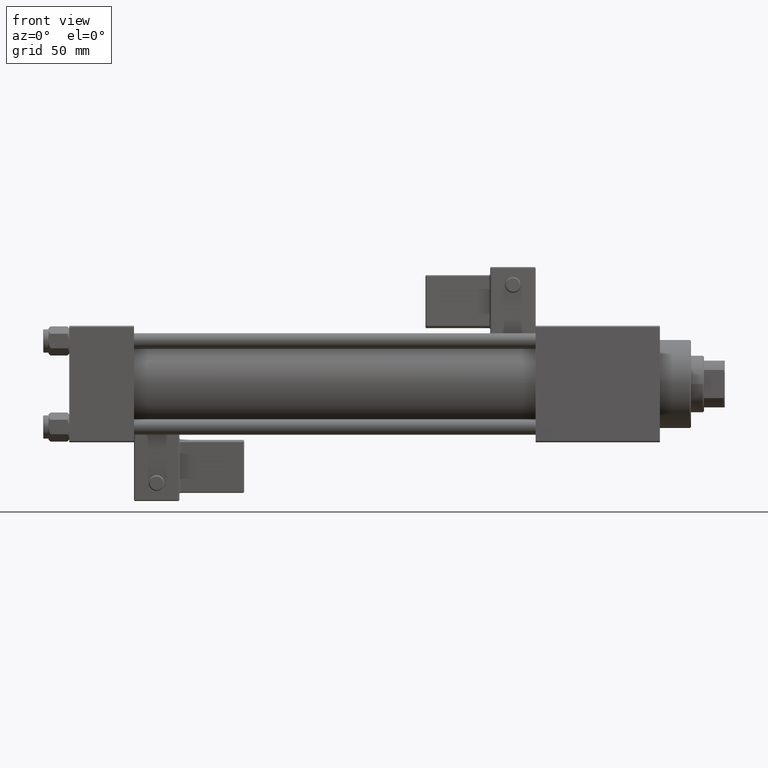
[diagram: clean part render]
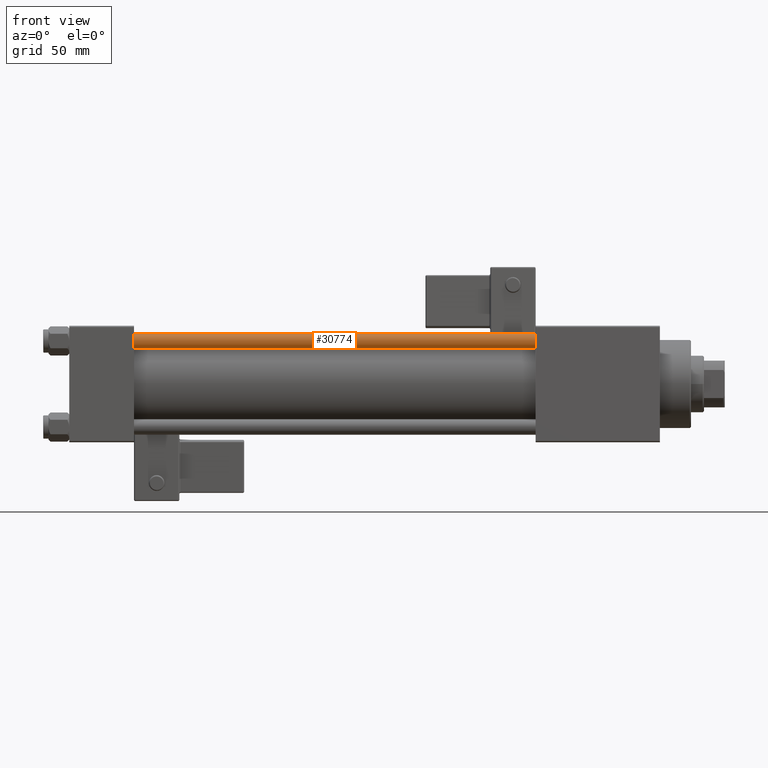
[diagram: same view with one face highlighted and labeled with its STEP entity id]
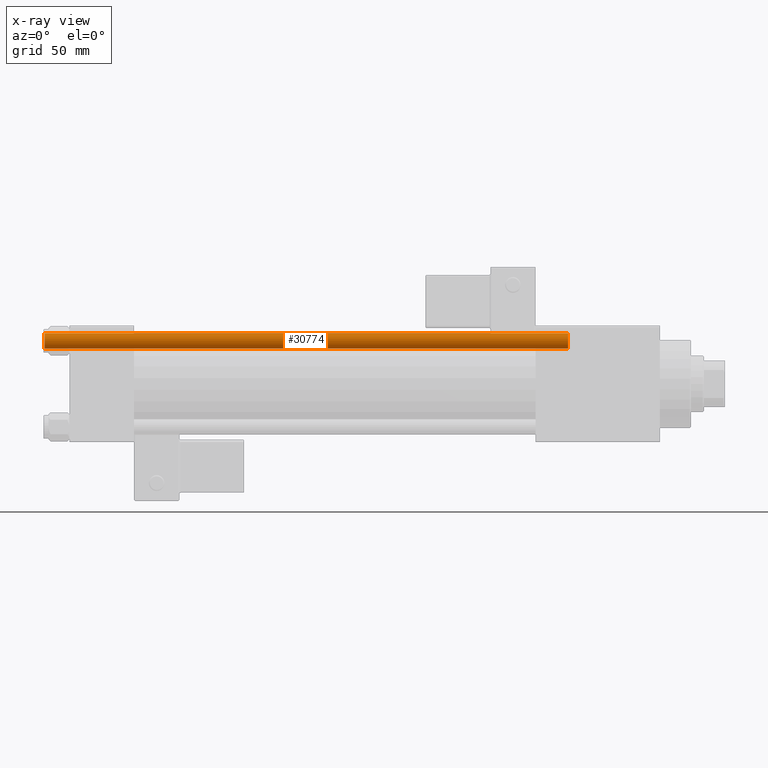
[diagram: x-ray of the same camera — body ghosted, the highlighted face saturated]
A machine part, front view. The second image highlights one B-rep face of the part: STEP entity #30774.
The next image is the same camera in x-ray: the body ghosted, the highlighted face saturated — about 0% of this face is hidden behind the body in this view.
In plain terms, the highlighted cylindrical surface (edge-blend (fillet) strip) has radius 3 mm, axis along (1, 0, -0).
Its self-contained STEP definition (entity closure, byte-faithful):
#105 = DIRECTION ( 'NONE',  ( 1.000000000000000000, 0.000000000000000000, 0.000000000000000000 ) ) ;
#705 = VECTOR ( 'NONE', #10915, 1000.000000000000000 ) ;
#1256 = DIRECTION ( 'NONE',  ( -0.000000000000000000, -0.000000000000000000, -1.000000000000000000 ) ) ;
#1626 = EDGE_CURVE ( 'NONE', #9570, #14562, #2438, .T. ) ;
#2417 = DIRECTION ( 'NONE',  ( -0.000000000000000000, -0.000000000000000000, -1.000000000000000000 ) ) ;
#2438 = CIRCLE ( 'NONE', #44129, 3.000000000000000444 ) ;
#3922 = CARTESIAN_POINT ( 'NONE',  ( 0.000000000000000000, 0.000000000000000000, 202.5000000000000853 ) ) ;
#7731 = DIRECTION ( 'NONE',  ( -0.000000000000000000, -0.000000000000000000, 1.000000000000000000 ) ) ;
#9570 = VERTEX_POINT ( 'NONE', #51593 ) ;
#10033 = VECTOR ( 'NONE', #1256, 1000.000000000000000 ) ;
#10286 = ORIENTED_EDGE ( 'NONE', *, *, #35065, .T. ) ;
#10915 = DIRECTION ( 'NONE',  ( -0.000000000000000000, -0.000000000000000000, -1.000000000000000000 ) ) ;
#11836 = DIRECTION ( 'NONE',  ( 0.000000000000000000, 0.000000000000000000, -1.000000000000000000 ) ) ;
#14250 = CIRCLE ( 'NONE', #44614, 3.000000000000000444 ) ;
#14562 = VERTEX_POINT ( 'NONE', #46090 ) ;
#15522 = LINE ( 'NONE', #39715, #705 ) ;
#16199 = ORIENTED_EDGE ( 'NONE', *, *, #20361, .T. ) ;
#19303 = CYLINDRICAL_SURFACE ( 'NONE', #32319, 3.000000000000000444 ) ;
#20246 = DIRECTION ( 'NONE',  ( 1.000000000000000000, 0.000000000000000000, 0.000000000000000000 ) ) ;
#20361 = EDGE_CURVE ( 'NONE', #45824, #9570, #15522, .T. ) ;
#24955 = CARTESIAN_POINT ( 'NONE',  ( -3.000000000000000444, 0.000000000000000000, 203.0000000000000000 ) ) ;
#28257 = CARTESIAN_POINT ( 'NONE',  ( 0.000000000000000000, 0.000000000000000000, 203.0000000000000000 ) ) ;
#30012 = ORIENTED_EDGE ( 'NONE', *, *, #1626, .T. ) ;
#30774 = ADVANCED_FACE ( 'NONE', ( #39668 ), #19303, .T. ) ;
#32319 = AXIS2_PLACEMENT_3D ( 'NONE', #28257, #2417, #36650 ) ;
#33000 = CARTESIAN_POINT ( 'NONE',  ( 0.000000000000000000, 0.000000000000000000, 0.5000000000001114664 ) ) ;
#34086 = VERTEX_POINT ( 'NONE', #39623 ) ;
#34372 = EDGE_LOOP ( 'NONE', ( #10286, #16199, #30012, #47105 ) ) ;
#35065 = EDGE_CURVE ( 'NONE', #34086, #45824, #14250, .T. ) ;
#36650 = DIRECTION ( 'NONE',  ( -1.000000000000000000, 0.000000000000000000, 0.000000000000000000 ) ) ;
#38506 = LINE ( 'NONE', #24955, #10033 ) ;
#39623 = CARTESIAN_POINT ( 'NONE',  ( -3.000000000000000444, 0.000000000000000000, 202.5000000000000853 ) ) ;
#39668 = FACE_OUTER_BOUND ( 'NONE', #34372, .T. ) ;
#39715 = CARTESIAN_POINT ( 'NONE',  ( 3.000000000000000444, 3.673940397442059868E-16, 203.0000000000000000 ) ) ;
#43764 = CARTESIAN_POINT ( 'NONE',  ( 3.000000000000000444, 3.673940397442059868E-16, 202.5000000000000853 ) ) ;
#44129 = AXIS2_PLACEMENT_3D ( 'NONE', #33000, #7731, #20246 ) ;
#44614 = AXIS2_PLACEMENT_3D ( 'NONE', #3922, #11836, #105 ) ;
#45326 = EDGE_CURVE ( 'NONE', #34086, #14562, #38506, .T. ) ;
#45824 = VERTEX_POINT ( 'NONE', #43764 ) ;
#46090 = CARTESIAN_POINT ( 'NONE',  ( -3.000000000000000444, 0.000000000000000000, 0.5000000000001114664 ) ) ;
#47105 = ORIENTED_EDGE ( 'NONE', *, *, #45326, .F. ) ;
#51593 = CARTESIAN_POINT ( 'NONE',  ( 3.000000000000000444, 3.673940397442059868E-16, 0.5000000000001114664 ) ) ;